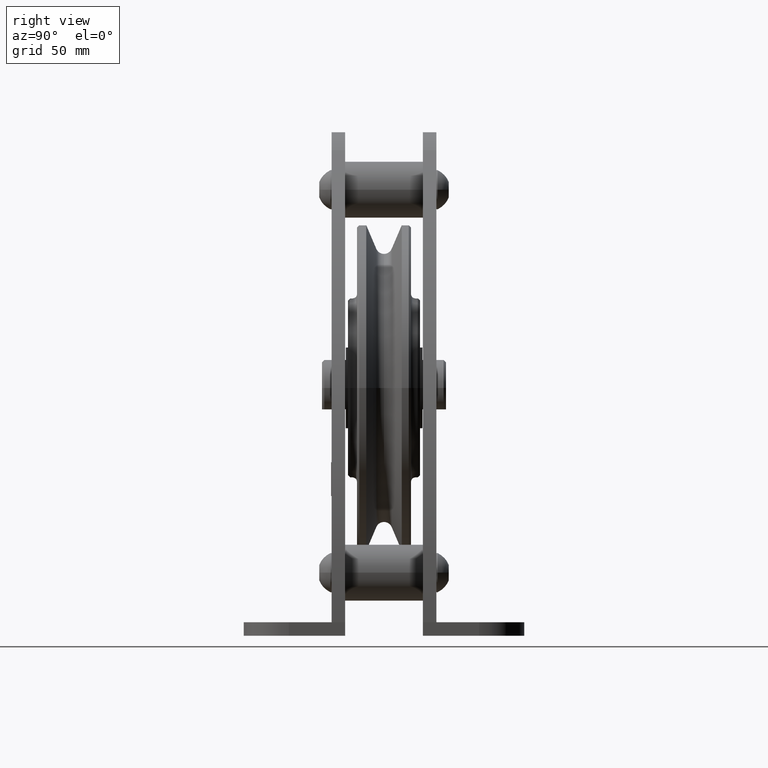
[diagram: clean part render]
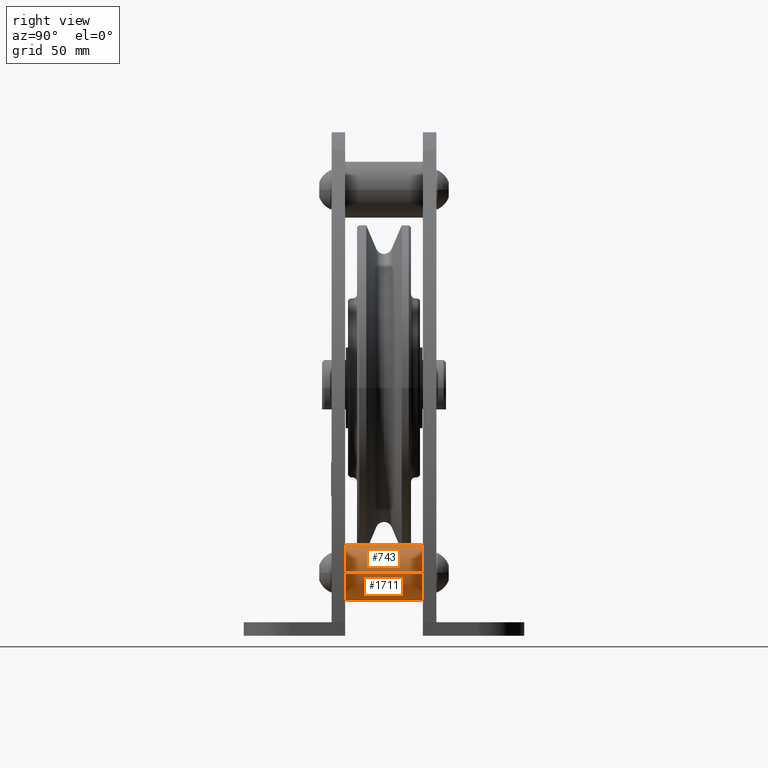
[diagram: same view with one multi-face feature highlighted, each face labeled with its STEP entity id]
A machine part, right view. The highlighted faces form ONE feature: a constant-radius fillet chain: 2 tangent blend faces with common blend radius 12.5 mm. The faces share edges in the B-rep.
Their STEP definitions:
[1] entity #743 (Cylinder):
#743=ADVANCED_FACE('',(#2122),#2123,.T.);
#2122=FACE_OUTER_BOUND('',#4228,.T.);
#2123=CYLINDRICAL_SURFACE('',#4229,12.5);
#4228=EDGE_LOOP('',(#6477,#6478,#6479,#6480));
#4229=AXIS2_PLACEMENT_3D('',#6481,#6482,#6483);
#6477=ORIENTED_EDGE('',*,*,#12704,.F.);
#6478=ORIENTED_EDGE('',*,*,#12705,.F.);
#6479=ORIENTED_EDGE('',*,*,#12706,.F.);
#6480=ORIENTED_EDGE('',*,*,#12707,.F.);
#6481=CARTESIAN_POINT('',(40.0,0.0,-82.0));
#6482=DIRECTION('',(0.0,-1.0,0.0));
#6483=DIRECTION('',(1.0,0.0,0.0));
#12704=EDGE_CURVE('',#15304,#15305,#15306,.T.);
#12705=EDGE_CURVE('',#15307,#15304,#15308,.T.);
#12706=EDGE_CURVE('',#15309,#15307,#15310,.T.);
#12707=EDGE_CURVE('',#15305,#15309,#15311,.T.);
#15304=VERTEX_POINT('',#19752);
#15305=VERTEX_POINT('',#19753);
#15306=LINE('',#19754,#19755);
#15307=VERTEX_POINT('',#19756);
#15308=CIRCLE('',#19757,12.5);
#15309=VERTEX_POINT('',#19758);
#15310=LINE('',#19759,#19760);
#15311=CIRCLE('',#19761,12.5);
#19752=CARTESIAN_POINT('',(52.5,17.25,-82.0));
#19753=CARTESIAN_POINT('',(52.5,-17.25,-82.0));
#19754=CARTESIAN_POINT('',(52.5,0.0,-82.0));
#19755=VECTOR('',#26825,1.0);
#19756=CARTESIAN_POINT('',(27.5,17.25,-82.0));
#19757=AXIS2_PLACEMENT_3D('',#26826,#26827,#26828);
#19758=CARTESIAN_POINT('',(27.5,-17.25,-82.0));
#19759=CARTESIAN_POINT('',(27.5,0.0,-82.0));
#19760=VECTOR('',#26829,1.0);
#19761=AXIS2_PLACEMENT_3D('',#26830,#26831,#26832);
#26825=DIRECTION('',(0.0,-1.0,0.0));
#26826=CARTESIAN_POINT('',(40.0,17.25,-82.0));
#26827=DIRECTION('',(-0.0,1.0,0.0));
#26828=DIRECTION('',(1.0,0.0,0.0));
#26829=DIRECTION('',(-0.0,1.0,-0.0));
#26830=CARTESIAN_POINT('',(40.0,-17.25,-82.0));
#26831=DIRECTION('',(0.0,-1.0,0.0));
#26832=DIRECTION('',(1.0,0.0,0.0));
[2] entity #1711 (Cylinder):
#1711=ADVANCED_FACE('',(#3627),#3628,.T.);
#3627=FACE_OUTER_BOUND('',#5733,.T.);
#3628=CYLINDRICAL_SURFACE('',#5734,12.5);
#5733=EDGE_LOOP('',(#11190,#11191,#11192,#11193));
#5734=AXIS2_PLACEMENT_3D('',#11194,#11195,#11196);
#11190=ORIENTED_EDGE('',*,*,#12704,.T.);
#11191=ORIENTED_EDGE('',*,*,#14558,.F.);
#11192=ORIENTED_EDGE('',*,*,#12706,.T.);
#11193=ORIENTED_EDGE('',*,*,#14559,.F.);
#11194=CARTESIAN_POINT('',(40.0,0.0,-82.0));
#11195=DIRECTION('',(0.0,-1.0,0.0));
#11196=DIRECTION('',(1.0,0.0,0.0));
#12704=EDGE_CURVE('',#15304,#15305,#15306,.T.);
#12706=EDGE_CURVE('',#15309,#15307,#15310,.T.);
#14558=EDGE_CURVE('',#15309,#15305,#18050,.T.);
#14559=EDGE_CURVE('',#15304,#15307,#18051,.T.);
#15304=VERTEX_POINT('',#19752);
#15305=VERTEX_POINT('',#19753);
#15306=LINE('',#19754,#19755);
#15307=VERTEX_POINT('',#19756);
#15309=VERTEX_POINT('',#19758);
#15310=LINE('',#19759,#19760);
#18050=CIRCLE('',#25740,12.5);
#18051=CIRCLE('',#25741,12.5);
#19752=CARTESIAN_POINT('',(52.5,17.25,-82.0));
#19753=CARTESIAN_POINT('',(52.5,-17.25,-82.0));
#19754=CARTESIAN_POINT('',(52.5,0.0,-82.0));
#19755=VECTOR('',#26825,1.0);
#19756=CARTESIAN_POINT('',(27.5,17.25,-82.0));
#19758=CARTESIAN_POINT('',(27.5,-17.25,-82.0));
#19759=CARTESIAN_POINT('',(27.5,0.0,-82.0));
#19760=VECTOR('',#26829,1.0);
#25740=AXIS2_PLACEMENT_3D('',#28891,#28892,#28893);
#25741=AXIS2_PLACEMENT_3D('',#28894,#28895,#28896);
#26825=DIRECTION('',(0.0,-1.0,0.0));
#26829=DIRECTION('',(-0.0,1.0,-0.0));
#28891=CARTESIAN_POINT('',(40.0,-17.25,-82.0));
#28892=DIRECTION('',(0.0,-1.0,0.0));
#28893=DIRECTION('',(1.0,0.0,0.0));
#28894=CARTESIAN_POINT('',(40.0,17.25,-82.0));
#28895=DIRECTION('',(-0.0,1.0,0.0));
#28896=DIRECTION('',(1.0,0.0,0.0));